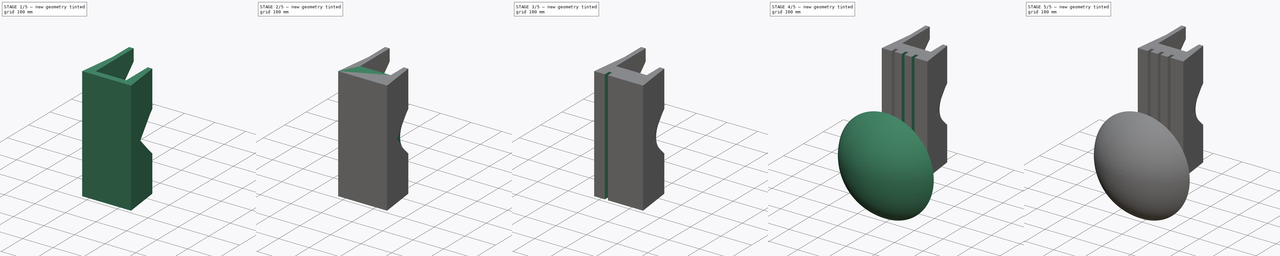
[diagram: build sequence overview — one tinted view per stage of 5, left to right]
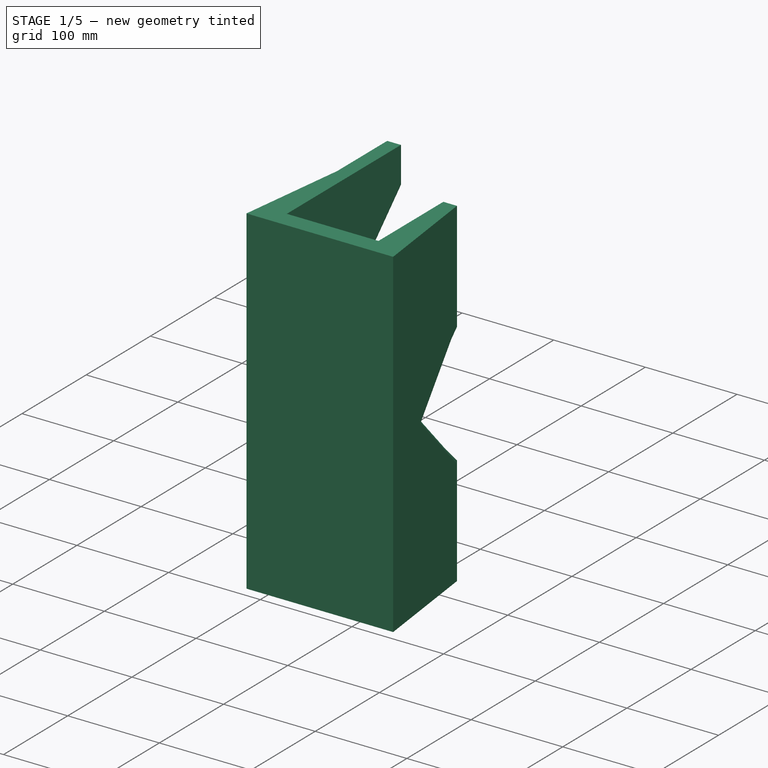
[diagram: stage 1 of 5 — iso view after this stage's code; geometry added in this stage tinted green]
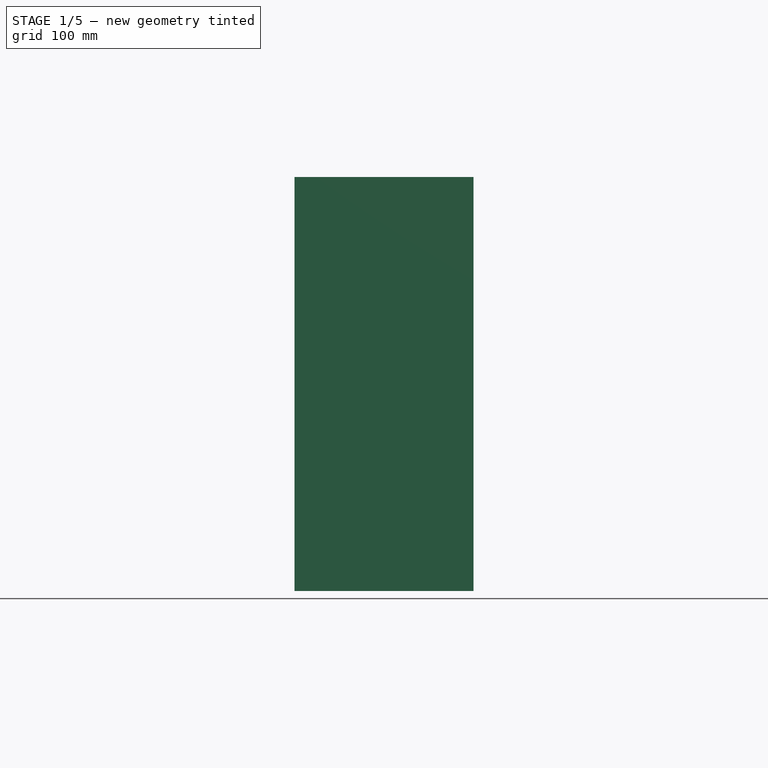
[diagram: stage 1 of 5 — front view after this stage's code; geometry added in this stage tinted green]
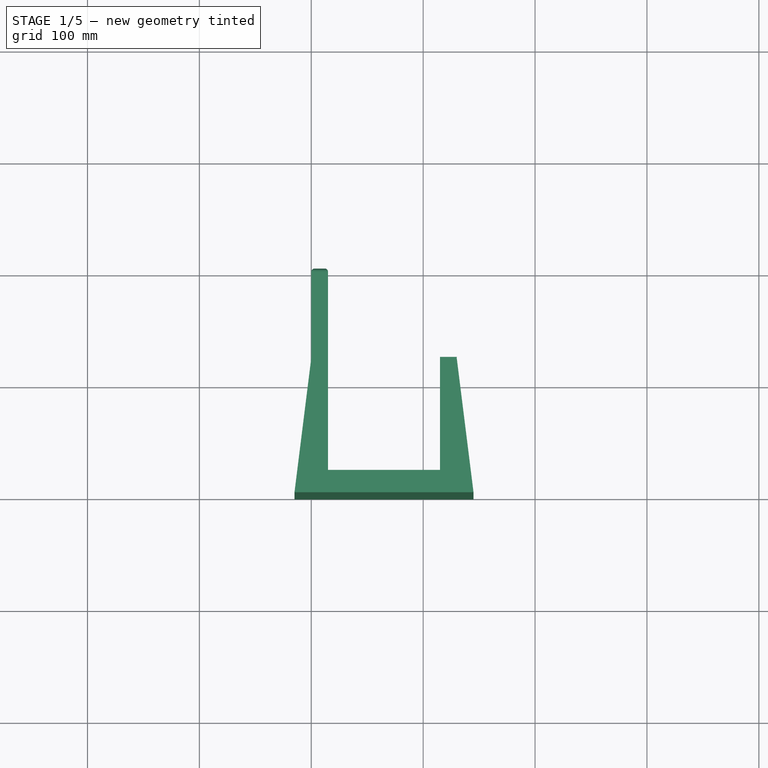
[diagram: stage 1 of 5 — top view after this stage's code; geometry added in this stage tinted green]
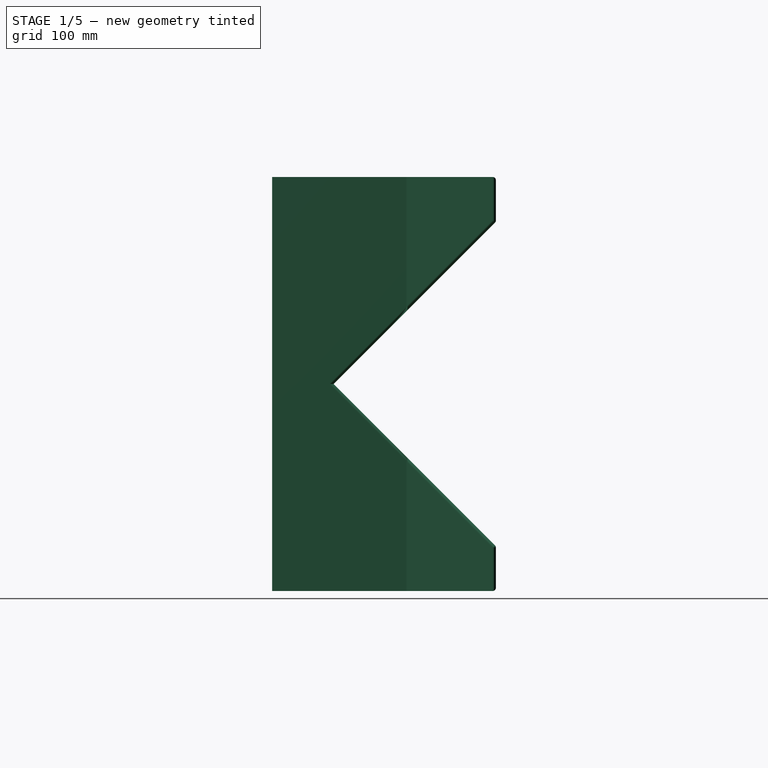
[diagram: stage 1 of 5 — right view after this stage's code; geometry added in this stage tinted green]
FCSTD DOCUMENT  (FreeCAD 1.0R39109 (Git))
Label: choppingBoardHolder
License: All rights reserved
LicenseURL: https://en.wikipedia.org/wiki/All_rights_reserved
objects: PartDesign::Fillet×5, Sketcher::SketchObject×4, PartDesign::SubtractiveBox×3, PartDesign::Body×3, PartDesign::Pad×2, PartDesign::AdditiveBox×2, PartDesign::Revolution×1, PartDesign::Chamfer×1, PartDesign::Pocket×1, PartDesign::LinearPattern×1
note: 58 computed .brp shape members not serialized (recipe doc carries the construction recipe); baked Part::Feature solids carry a one-line shape summary decoded from their .brp

FEATURE [PartDesign::Body] Body
  AllowCompound = false
  Group = -> [Sketch,Pad,Box,Fillet,Fillet001]
  Origin = -> Origin
  Tip = -> Fillet001
FEATURE [Sketcher::SketchObject] Sketch001
  ArcFitTolerance = 1e-06
  AttachmentSupport = -> [XY_Plane001]
  FullyConstrained = true
  MakeInternals = false
  MapMode = 5
  sketch-geometry (16):
    g0: LineSegment StartX=0 StartY=0 StartZ=0 EndX=50 EndY=0 EndZ=0
    g1: LineSegment StartX=15 StartY=20 StartZ=0 EndX=15 EndY=200 EndZ=0
    g2: LineSegment StartX=15 StartY=200 StartZ=0 EndX=0 EndY=200 EndZ=0
    g3: LineSegment StartX=0 StartY=200 StartZ=0 EndX=0 EndY=120 EndZ=0
    g4: LineSegment StartX=50 StartY=0 StartZ=0 EndX=80 EndY=0 EndZ=0
    g5: LineSegment StartX=115 StartY=20 StartZ=0 EndX=15 EndY=20 EndZ=0
    g6: LineSegment StartX=80 StartY=0 StartZ=0 EndX=130 EndY=0 EndZ=0
    g7: LineSegment StartX=130 StartY=120 StartZ=0 EndX=130 EndY=121 EndZ=0
    g8: LineSegment StartX=130 StartY=121 StartZ=0 EndX=115 EndY=121 EndZ=0
    g9: GeomPoint [constr] X=0 Y=0 Z=0
    g10: LineSegment StartX=-15 StartY=0 StartZ=0 EndX=0 EndY=120 EndZ=0
    g11: GeomPoint [constr] X=130 Y=0 Z=0
    g12: LineSegment StartX=130 StartY=120 StartZ=0 EndX=145 EndY=0 EndZ=0
    g13: LineSegment StartX=0 StartY=0 StartZ=0 EndX=-15 EndY=0 EndZ=0
    g14: LineSegment StartX=130 StartY=0 StartZ=0 EndX=145 EndY=0 EndZ=0
    g15: LineSegment StartX=115 StartY=20 StartZ=0 EndX=115 EndY=121 EndZ=0
  constraints (43):
    c: Coincident(g1,g2)
    c: Coincident(g2,g3)
    c: Coincident(g9,g0)
    c: Horizontal(g0)
    c: Horizontal(g2)
    c: Vertical(g1)
    c: Vertical(g3)
    c: Coincident(g0,g-1)
    c: Horizontal(g4)
    c: Horizontal(g5)
    c: Coincident(g4,g0)
    c: Coincident(g6,g11)
    c: Coincident(g7,g8)
    c: Horizontal(g6)
    c: Vertical(g7)
    c: Coincident(g6,g4)
    c: Equal(g0,g6)
    c: DistanceX(g5,g5) = 100
    c: DistanceY(g4,g5) = 20
    c: PointOnObject(g9,g3)
    c: Coincident(g10,g3)
    c: PointOnObject(g11,g7)
    c: Coincident(g12,g7)
    c: Coincident(g13,g0)
    c: Coincident(g14,g6)
    c: Horizontal(g14)
    c: Equal(g10,g12)
    c: Coincident(g10,g13)
    c: PointOnObject(g10,g-1)
    c: Coincident(g12,g14)
    c: Equal(g14,g13)
    c: Coincident(g15,g5)
    c: Coincident(g15,g8)
    c: Vertical(g15)
    c: Coincident(g5,g1)
    c: Equal(g8,g2)
    c: DistanceX(g10,g12) = 160
    c: DistanceY(g7,g7) = 1
    c: DistanceX(g4,g4) = 30
    c: Distance(g8,g8) = 15
    c: Horizontal(g8)
    c: DistanceY(g6,g7) = 120
    c: DistanceY(g1,g1) = 180
FEATURE [PartDesign::Pad] Pad001
  Direction = (0,0,1)
  Length = 370
  Length2 = 10
  Profile = -> Sketch001
  ReferenceAxis = -> Sketch001 [N_Axis]
  Refine = true
  Suppressed = false
  Type = 0
FEATURE [PartDesign::SubtractiveBox] Box001
  AttacherType = Attacher::AttachEngine3D
  AttachmentOffset = pos=(-21,55,185) rot=(-1,0,0;0.785398rad)
  AttachmentSupport = -> [X_Axis001]
  BaseFeature = -> Pad001
  Height = 263
  Length = 167
  MapMode = 2
  Placement = pos=(-21,55,185) rot=(-1,0,0;0.785398rad)
  Refine = true
  Suppressed = false
  Width = 263
  expr: .AttachmentOffset.Base.z = Pad001.Length / 2
  expr: Height = Width
FEATURE [PartDesign::Body] Body002
  AllowCompound = false
  Group = -> [Sketch002,Revolution]
  Origin = -> Origin002
  Placement = pos=(19.8,176.74,185) rot=(0,0,1;1.8326rad)
  Tip = -> Revolution
  expr: .Placement.Base.z = Pad001.Length / 2
FEATURE [PartDesign::Fillet] Fillet002
  Base = -> Box001 [Edge49,Edge48,Edge41,Edge42,Edge6,Edge32,Edge5,Edge31,Edge53,Edge47,Edge44,Edge40,Edge14,Edge45,Edge24,Edge43,Edge51,Edge52]
  BaseFeature = -> Box001
  Placement = pos=(-21,55,185) rot=(-1,0,0;0.785398rad)
  Radius = 3
  Refine = true
  SupportTransform = false
  Suppressed = false
  UseAllEdges = false
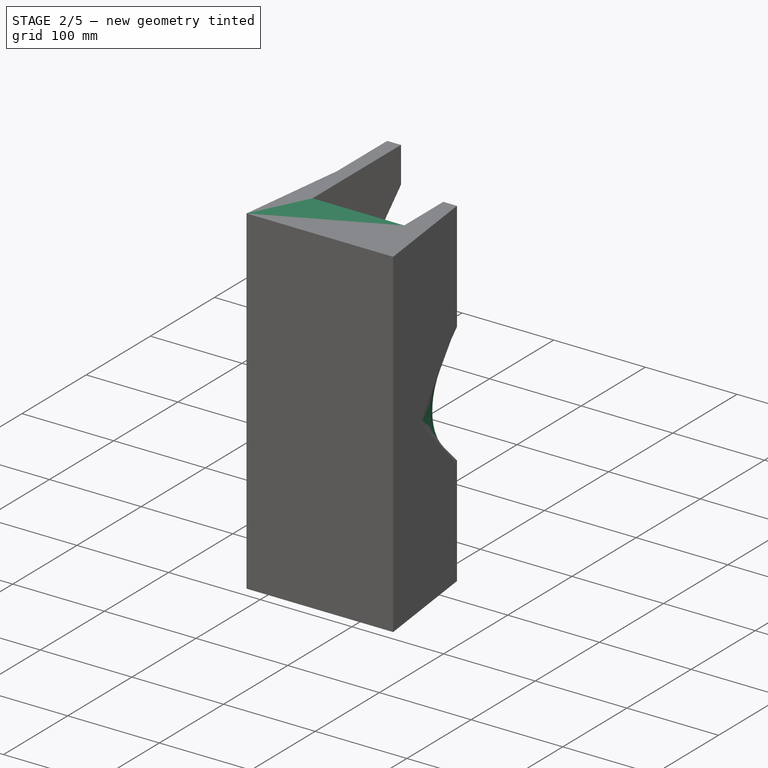
[diagram: stage 2 of 5 — iso view after this stage's code; geometry added in this stage tinted green]
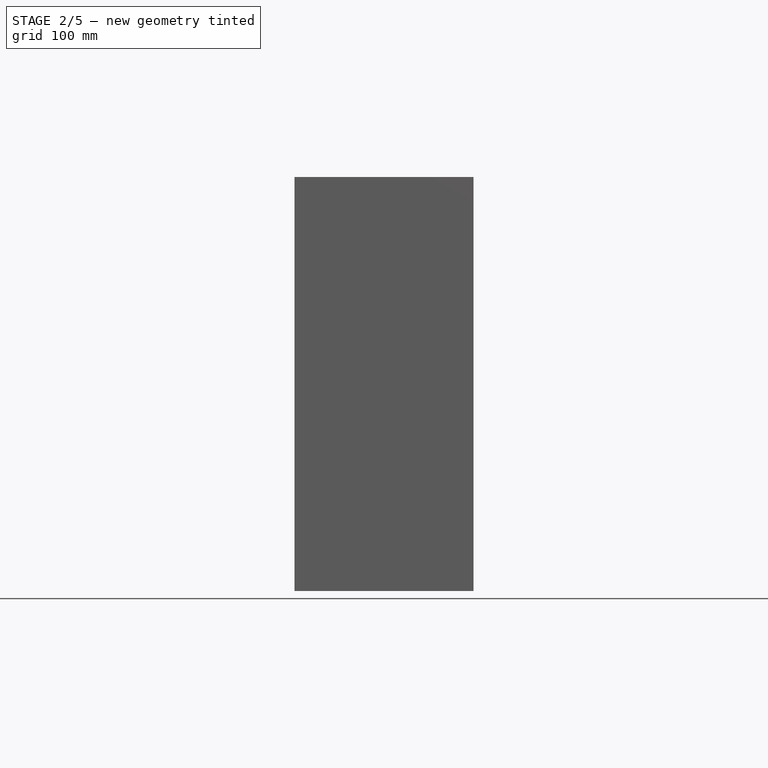
[diagram: stage 2 of 5 — front view after this stage's code; geometry added in this stage tinted green]
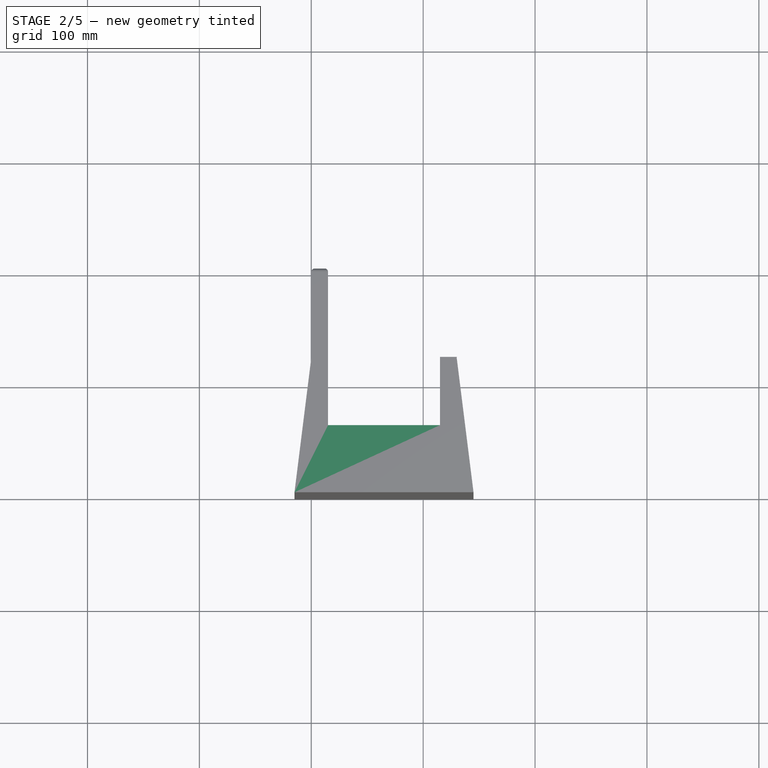
[diagram: stage 2 of 5 — top view after this stage's code; geometry added in this stage tinted green]
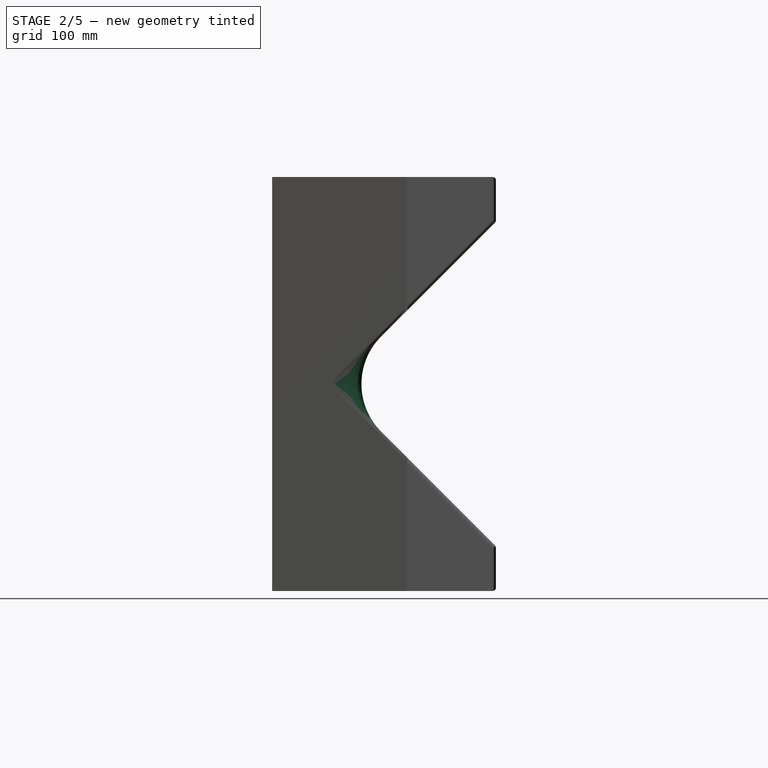
[diagram: stage 2 of 5 — right view after this stage's code; geometry added in this stage tinted green]
FEATURE [PartDesign::Fillet] Fillet003
  Base = -> Fillet002 [Edge98,Edge38]
  BaseFeature = -> Fillet002
  Placement = pos=(-21,55,185) rot=(-1,0,0;0.785398rad)
  Radius = 60
  Refine = true
  SupportTransform = false
  Suppressed = false
  UseAllEdges = false
FEATURE [PartDesign::AdditiveBox] Box002
  AttacherType = Attacher::AttachEngine3D
  AttachmentOffset = pos=(0,0,0) rot=(0,0,1;1.5708rad)
  AttachmentSupport = -> [Fillet003]
  BaseFeature = -> Fillet003
  Height = 100
  Length = 110
  MapMode = 7
  Placement = pos=(115,20,0) rot=(0,-1,0;1.5708rad)
  Refine = true
  Suppressed = false
  Width = 40
FEATURE [PartDesign::AdditiveBox] Box003
  AttacherType = Attacher::AttachEngine3D
  AttachmentOffset = pos=(0,0,0) rot=(0,0,1;3.14159rad)
  AttachmentSupport = -> [Box002]
  BaseFeature = -> Box002
  Height = 100
  Length = 40
  MapMode = 7
  Placement = pos=(115,20,370) rot=(-0.57735,-0.57735,0.57735;2.0944rad)
  Refine = true
  Suppressed = false
  Width = 110
  expr: Height = Box002.Height
  expr: Length = Box002.Width
  expr: Width = Box002.Length
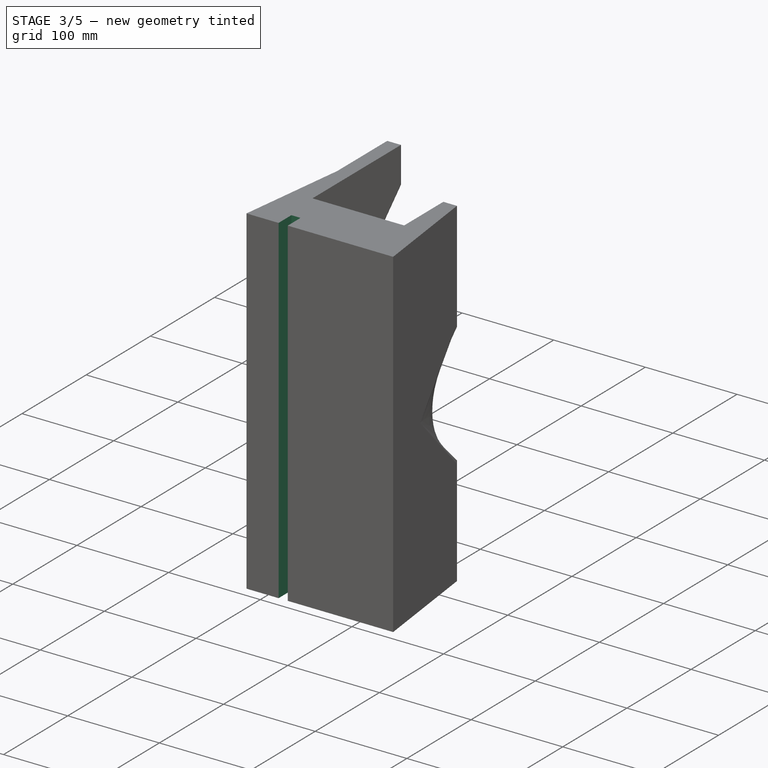
[diagram: stage 3 of 5 — iso view after this stage's code; geometry added in this stage tinted green]
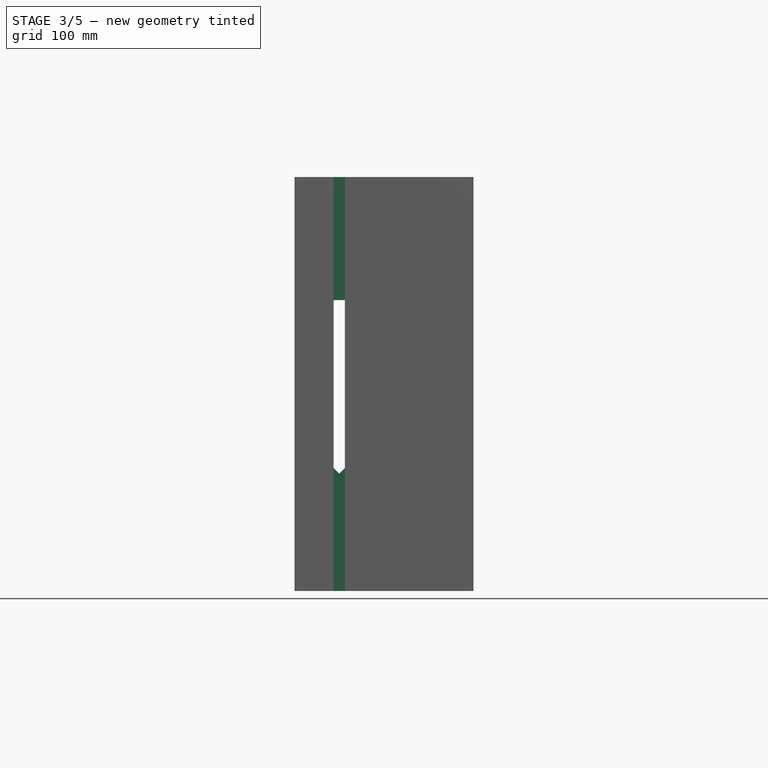
[diagram: stage 3 of 5 — front view after this stage's code; geometry added in this stage tinted green]
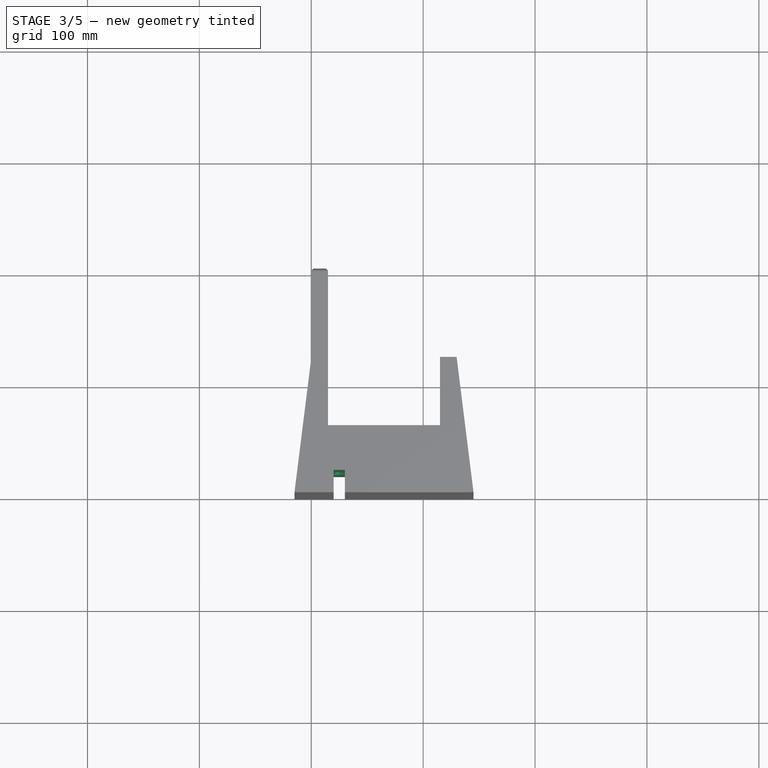
[diagram: stage 3 of 5 — top view after this stage's code; geometry added in this stage tinted green]
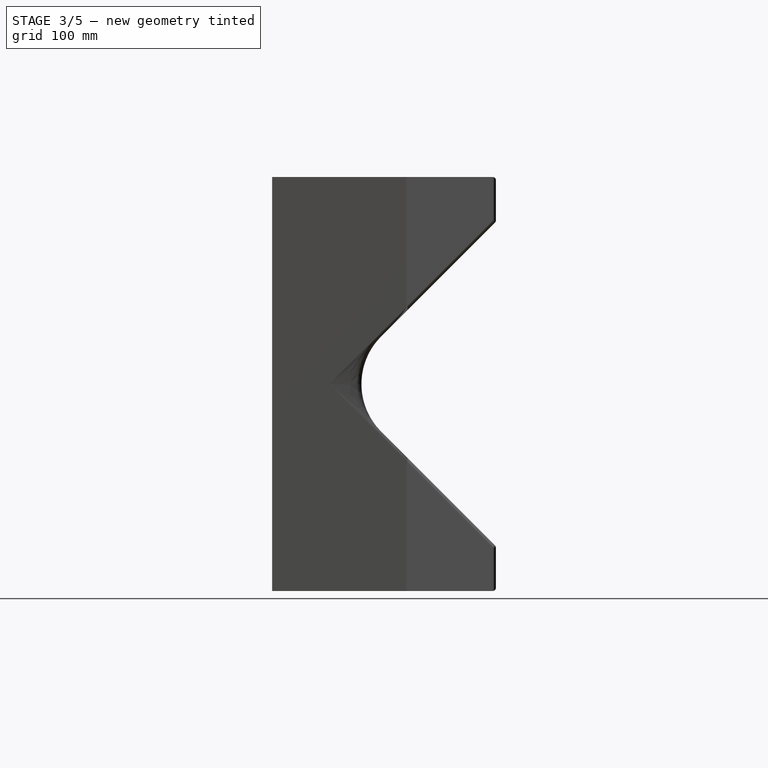
[diagram: stage 3 of 5 — right view after this stage's code; geometry added in this stage tinted green]
FEATURE [PartDesign::Chamfer] Chamfer
  Angle = 45
  Base = -> Box003 [Edge78,Edge34]
  BaseFeature = -> Box003
  ChamferType = 0
  FlipDirection = false
  Placement = pos=(115,20,370) rot=(-0.57735,-0.57735,0.57735;2.0944rad)
  Refine = true
  Size = 39.99
  Size2 = 1
  SupportTransform = false
  Suppressed = false
  UseAllEdges = false
FEATURE [PartDesign::Fillet] Fillet004
  Base = -> Chamfer [Edge43,Edge14]
  BaseFeature = -> Chamfer
  Placement = pos=(115,20,370) rot=(-0.57735,-0.57735,0.57735;2.0944rad)
  Radius = 24
  Refine = true
  SupportTransform = false
  Suppressed = false
  UseAllEdges = false
FEATURE [PartDesign::SubtractiveBox] Box004
  AttacherType = Attacher::AttachEngine3D
  AttachmentOffset = pos=(20,0,0) rot=(0,0,1;0rad)
  AttachmentSupport = -> [X_Axis001]
  BaseFeature = -> Fillet004
  Height = 390
  Length = 10
  MapMode = 2
  Placement = pos=(20,0,0) rot=(0,0,1;0rad)
  Refine = true
  Suppressed = false
  Width = 20
FEATURE [Sketcher::SketchObject] Sketch003
  ArcFitTolerance = 1e-06
  AttachmentSupport = -> [Box004]
  ExternalGeometry = -> [Box004]
  FullyConstrained = true
  MakeInternals = false
  MapMode = 5
  Placement = pos=(20,20,0) rot=(1,0,0;1.5708rad)
  sketch-geometry (3):
    g0: LineSegment StartX=2.84e-14 StartY=110 StartZ=0 EndX=5 EndY=105 EndZ=0
    g1: LineSegment StartX=5 StartY=105 StartZ=0 EndX=10 EndY=110 EndZ=0
    g2: LineSegment StartX=2.84e-14 StartY=110 StartZ=0 EndX=10 EndY=110 EndZ=0
  constraints (7):
    c: Angle(g-1,g0) = -0.785398
    c: Coincident(g0,g-3)
    c: Angle(g-1,g1) = 0.785398
    c: Coincident(g1,g0)
    c: Coincident(g1,g-3)
    c: Coincident(g2,g0)
    c: Coincident(g2,g1)
FEATURE [PartDesign::Pocket] Pocket
  BaseFeature = -> Box004
  Direction = (0,1,-2e-16)
  Length = 5
  Length2 = 5
  Placement = pos=(20,0,0) rot=(0,0,1;0rad)
  Profile = -> Sketch003
  ReferenceAxis = -> Sketch003 [N_Axis]
  Refine = true
  Suppressed = false
  Type = 1
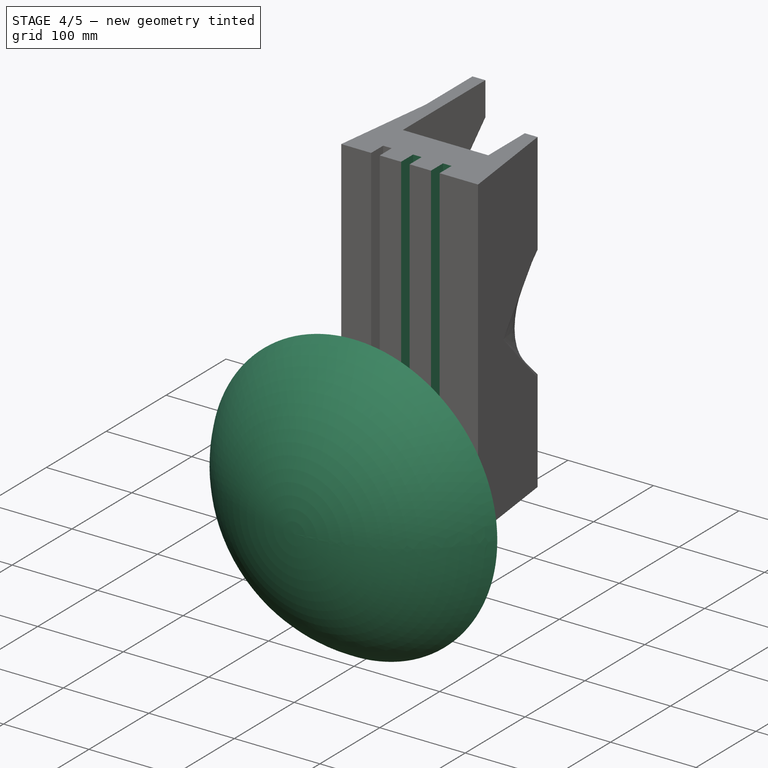
[diagram: stage 4 of 5 — iso view after this stage's code; geometry added in this stage tinted green]
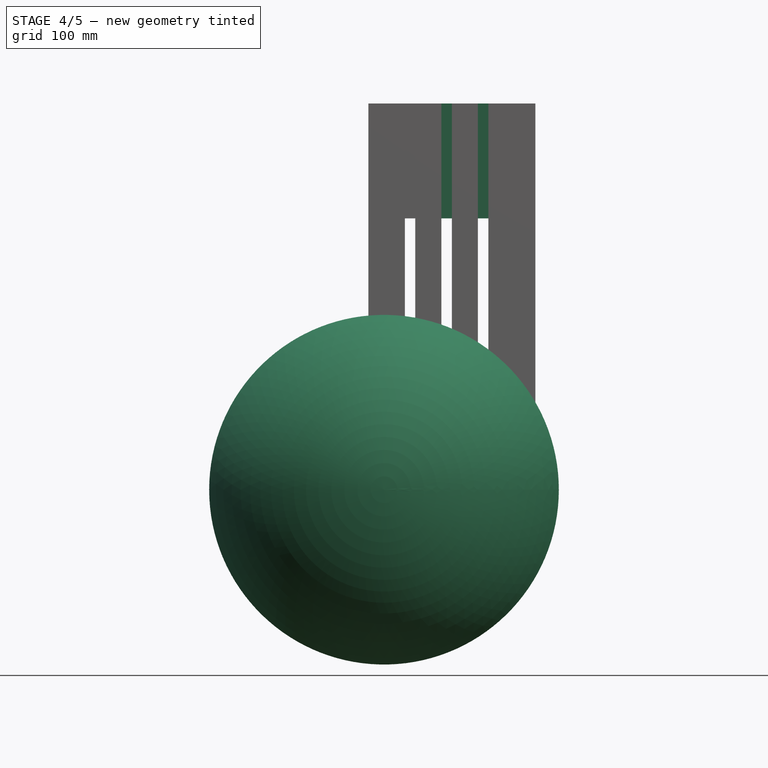
[diagram: stage 4 of 5 — front view after this stage's code; geometry added in this stage tinted green]
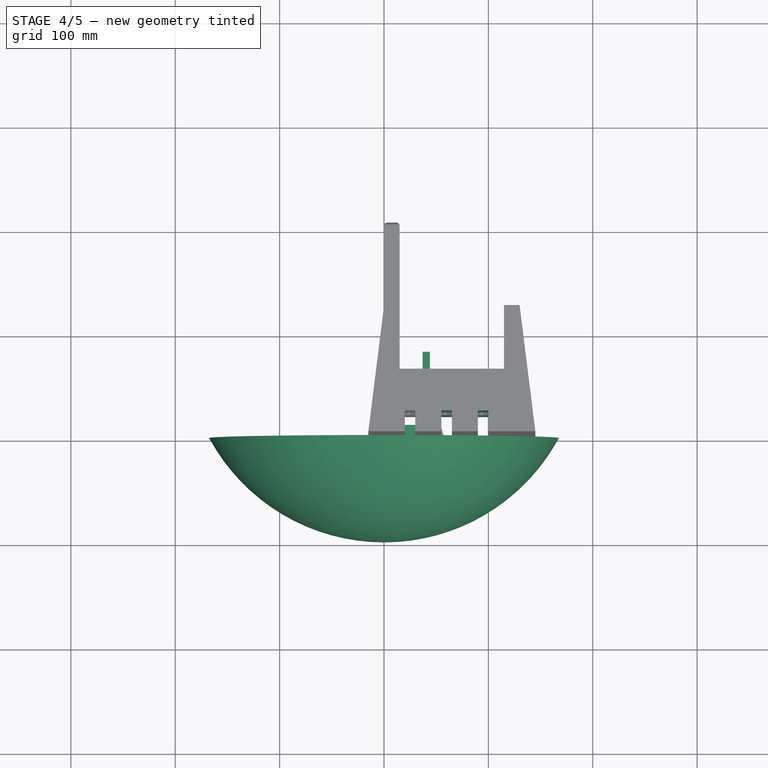
[diagram: stage 4 of 5 — top view after this stage's code; geometry added in this stage tinted green]
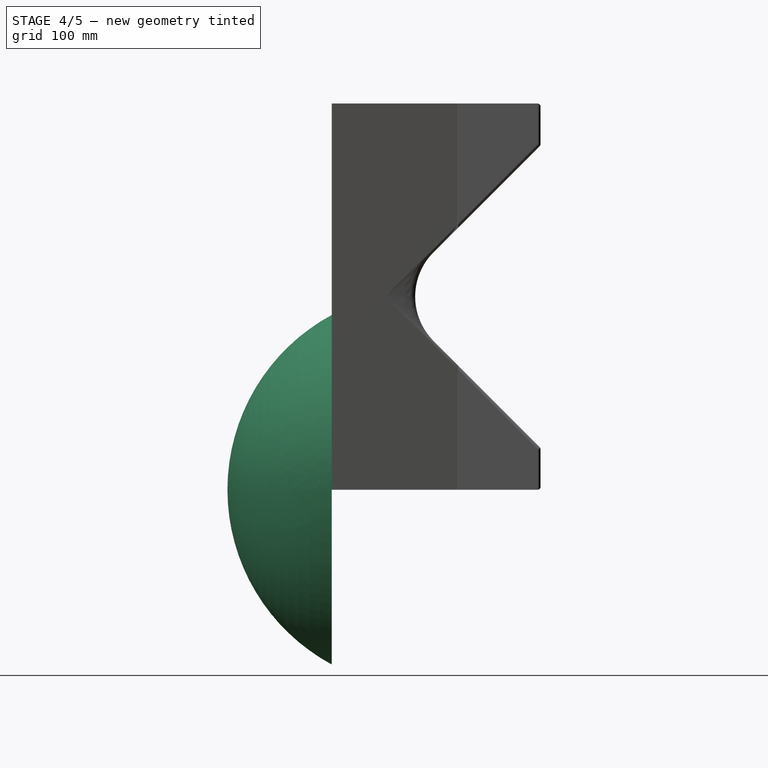
[diagram: stage 4 of 5 — right view after this stage's code; geometry added in this stage tinted green]
FEATURE [Sketcher::SketchObject] Sketch
  ArcFitTolerance = 1e-06
  AttachmentSupport = -> [XY_Plane]
  FullyConstrained = true
  MakeInternals = false
  MapMode = 5
  sketch-geometry (16):
    g0: LineSegment StartX=0 StartY=0 StartZ=0 EndX=7 EndY=0 EndZ=0
    g1: LineSegment StartX=7 StartY=10 StartZ=0 EndX=7 EndY=80 EndZ=0
    g2: LineSegment StartX=7 StartY=80 StartZ=0 EndX=0 EndY=80 EndZ=0
    g3: LineSegment StartX=0 StartY=80 StartZ=0 EndX=0 EndY=50 EndZ=0
    g4: LineSegment StartX=7 StartY=0 StartZ=0 EndX=37 EndY=0 EndZ=0
    g5: LineSegment StartX=37 StartY=10 StartZ=0 EndX=7 EndY=10 EndZ=0
    g6: LineSegment StartX=37 StartY=0 StartZ=0 EndX=44 EndY=0 EndZ=0
    g7: LineSegment StartX=44 StartY=50 StartZ=0 EndX=44 EndY=80 EndZ=0
    g8: LineSegment StartX=44 StartY=80 StartZ=0 EndX=37 EndY=80 EndZ=0
    g9: GeomPoint [constr] X=0 Y=0 Z=0
    g10: LineSegment StartX=-13 StartY=0 StartZ=0 EndX=0 EndY=50 EndZ=0
    g11: GeomPoint [constr] X=44 Y=0 Z=0
    g12: LineSegment StartX=44 StartY=50 StartZ=0 EndX=57 EndY=0 EndZ=0
    g13: LineSegment StartX=0 StartY=0 StartZ=0 EndX=-13 EndY=0 EndZ=0
    g14: LineSegment StartX=44 StartY=0 StartZ=0 EndX=57 EndY=0 EndZ=0
    g15: LineSegment StartX=37 StartY=10 StartZ=0 EndX=37 EndY=80 EndZ=0
  constraints (42):
    c: Coincident(g1,g2)
    c: Coincident(g2,g3)
    c: Coincident(g9,g0)
    c: Horizontal(g0)
    c: Horizontal(g2)
    c: Vertical(g1)
    c: Vertical(g3)
    c: Coincident(g0,g-1)
    c: Horizontal(g4)
    c: Horizontal(g5)
    c: Coincident(g4,g0)
    c: Coincident(g6,g11)
    c: Coincident(g7,g8)
    c: Horizontal(g6)
    c: Vertical(g7)
    c: Coincident(g6,g4)
    c: Tangent(g8,g2)
    c: Equal(g0,g6)
    c: DistanceX(g5,g5) = 30
    c: DistanceY(g6,g8) = 80
    c: Distance(g2,g2) = 7
    c: DistanceY(g4,g5) = 10
    c: PointOnObject(g9,g3)
    c: Coincident(g10,g3)
    c: PointOnObject(g11,g7)
    c: Coincident(g12,g7)
    c: Coincident(g13,g0)
    c: Coincident(g14,g6)
    c: Horizontal(g14)
    c: Equal(g10,g12)
    c: Coincident(g10,g13)
    c: PointOnObject(g10,g-1)
    c: Coincident(g12,g14)
    c: Equal(g14,g13)
    c: Coincident(g15,g5)
    c: Coincident(g15,g8)
    c: Vertical(g15)
    c: Coincident(g5,g1)
    c: Equal(g8,g2)
    c: DistanceX(g10,g12) = 70
    c: DistanceY(g7,g7) = 30
    c: DistanceX(g4,g4) = 30
FEATURE [PartDesign::Pad] Pad
  Direction = (0,0,1)
  Length = 150
  Length2 = 10
  Profile = -> Sketch
  ReferenceAxis = -> Sketch [N_Axis]
  Refine = true
  Suppressed = false
  Type = 0
FEATURE [Sketcher::SketchObject] Sketch002
  ArcFitTolerance = 1e-06
  AttachmentSupport = -> [XY_Plane002]
  FullyConstrained = false
  MakeInternals = false
  MapMode = 5
  sketch-geometry (6):
    g0: LineSegment [constr] StartX=-167.5 StartY=-4.26e-14 StartZ=0 EndX=167.5 EndY=-4.26e-14 EndZ=0
    g1: LineSegment StartX=0 StartY=0 StartZ=0 EndX=0 EndY=-100 EndZ=0
    g2: ArcOfCircle [constr] CenterX=6.2e-15 CenterY=90.2812 CenterZ=0 NormalX=0 NormalY=0 NormalZ=1 AngleXU=0 Radius=190.281 StartAngle=3.63595 EndAngle=4.71239
    g3: ArcOfCircle CenterX=6.2e-15 CenterY=90.2812 CenterZ=0 NormalX=0 NormalY=0 NormalZ=1 AngleXU=0 Radius=190.281 StartAngle=4.71239 EndAngle=4.71239
    g4: ArcOfCircle CenterX=6.2e-15 CenterY=90.2812 CenterZ=0 NormalX=0 NormalY=0 NormalZ=1 AngleXU=0 Radius=190.281 StartAngle=4.71239 EndAngle=5.78883
    g5: LineSegment StartX=0 StartY=0 StartZ=0 EndX=167.5 EndY=-4.26e-14 EndZ=0
  constraints (16):
    c: PointOnObject(g4,g-1)
    c: Coincident(g0,g2)
    c: Coincident(g0,g4)
    c: DistanceX(g0,g0) = 335
    c: Symmetric(g0,g0,g1)
    c: Vertical(g1)
    c: DistanceY(g1,g1) = 100
    c: Coincident(g1,g-1)
    c: Coincident(g2,g3)
    c: Coincident(g2,g3)
    c: PointOnObject(g1,g2)
    c: Coincident(g3,g4)
    c: Coincident(g3,g4)
    c: PointOnObject(g3,g-2)
    c: Coincident(g5,g1)
    c: Coincident(g5,g0)
FEATURE [PartDesign::Revolution] Revolution
  Angle = 360
  Angle2 = 60
  Axis = (0,1,0)
  Base = (0,0,0)
  Profile = -> Sketch002 [Edge1,Edge4,Edge3]
  ReferenceAxis = -> Sketch002 [V_Axis]
  Refine = true
  Reversed = true
  Suppressed = false
  Type = 0
FEATURE [PartDesign::LinearPattern] LinearPattern
  BaseFeature = -> Pocket
  Direction = -> X_Axis001
  Length = 70
  Mode = 0
  Occurrences = 3
  Offset = 35
  Originals = -> [Box004,Pocket]
  Placement = pos=(20,0,0) rot=(0,0,1;0rad)
  Refine = true
  Suppressed = false
  TransformMode = 0
FEATURE [PartDesign::Body] Body001  label="panHolder"
  AllowCompound = false
  Group = -> [Sketch001,Pad001,Box001,Fillet002,Fillet003,Box002,Box003,Chamfer,Fillet004,Box004,Sketch003,Pocket,LinearPattern]
  Origin = -> Origin001
  Tip = -> LinearPattern
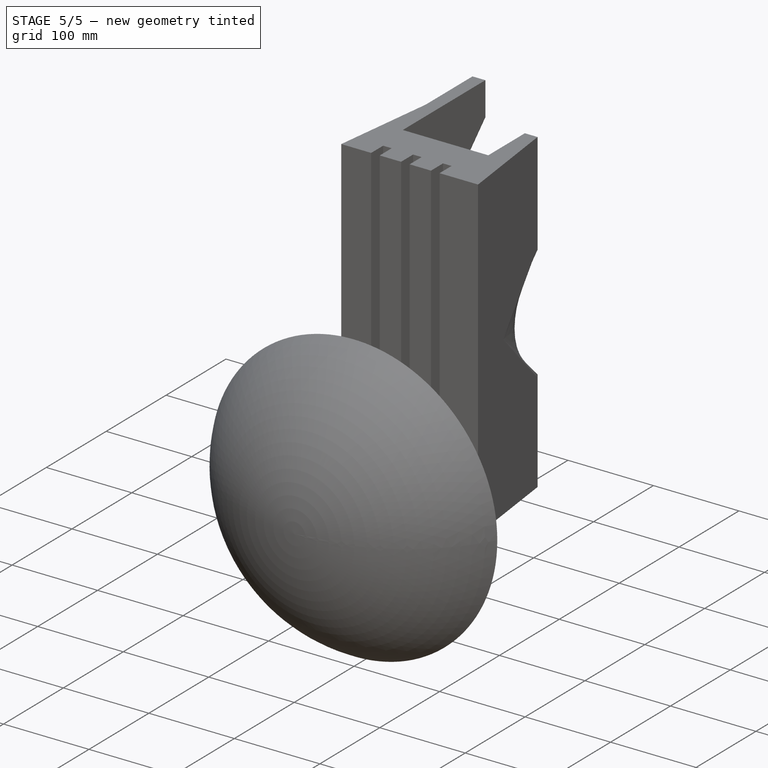
[diagram: stage 5 of 5 — iso view after this stage's code; geometry added in this stage tinted green]
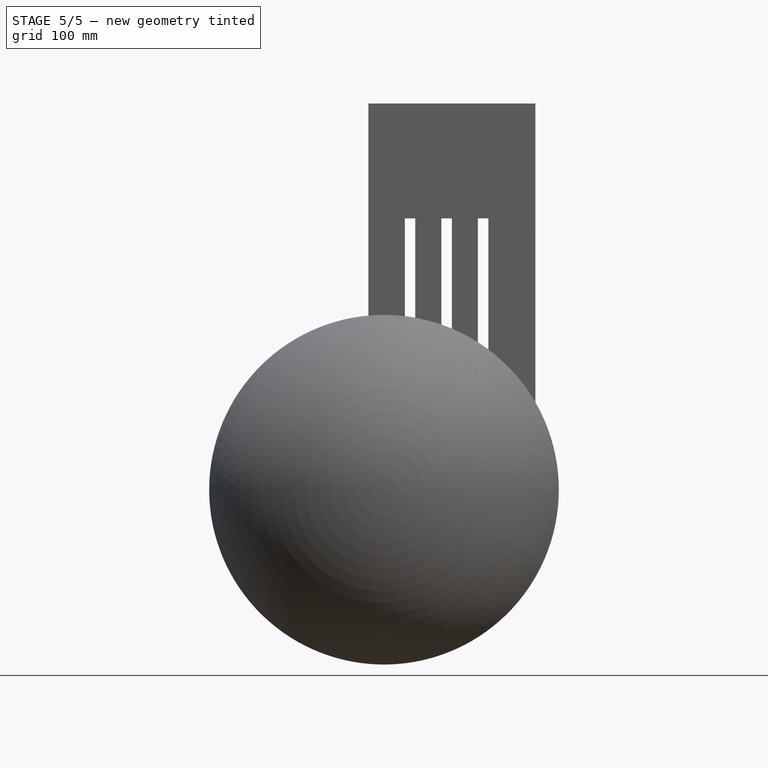
[diagram: stage 5 of 5 — front view after this stage's code; geometry added in this stage tinted green]
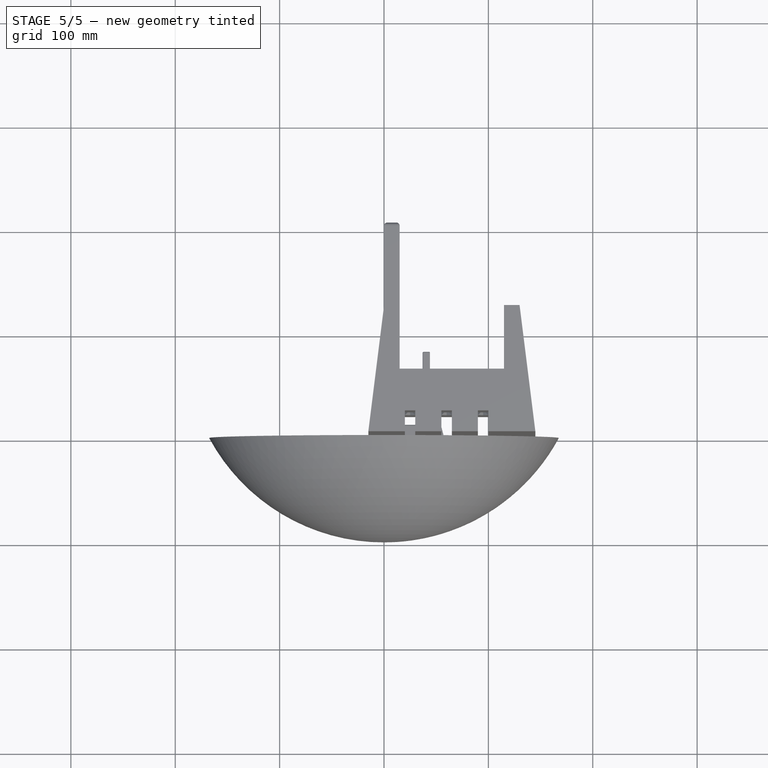
[diagram: stage 5 of 5 — top view after this stage's code; geometry added in this stage tinted green]
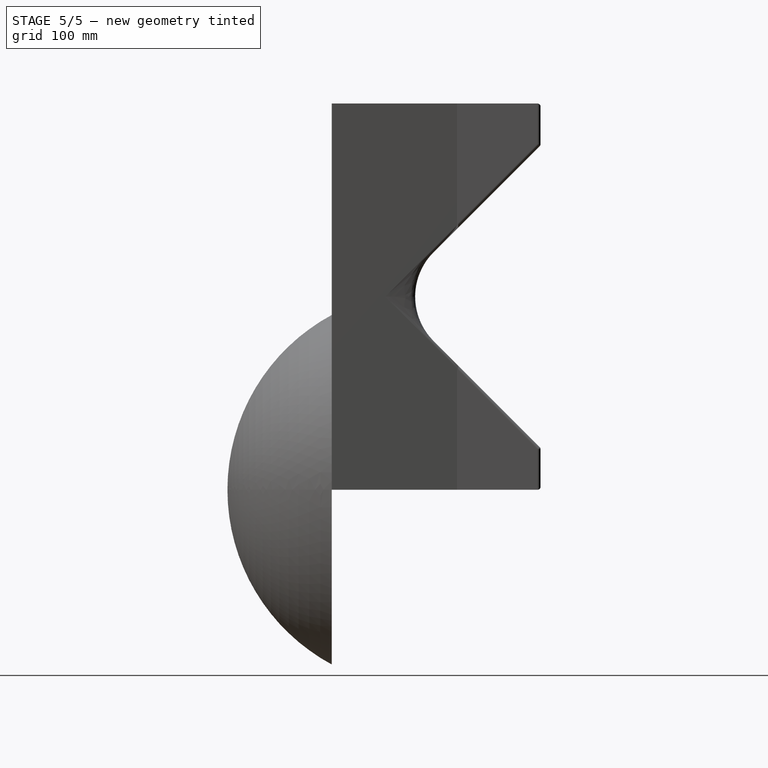
[diagram: stage 5 of 5 — right view after this stage's code; geometry added in this stage tinted green]
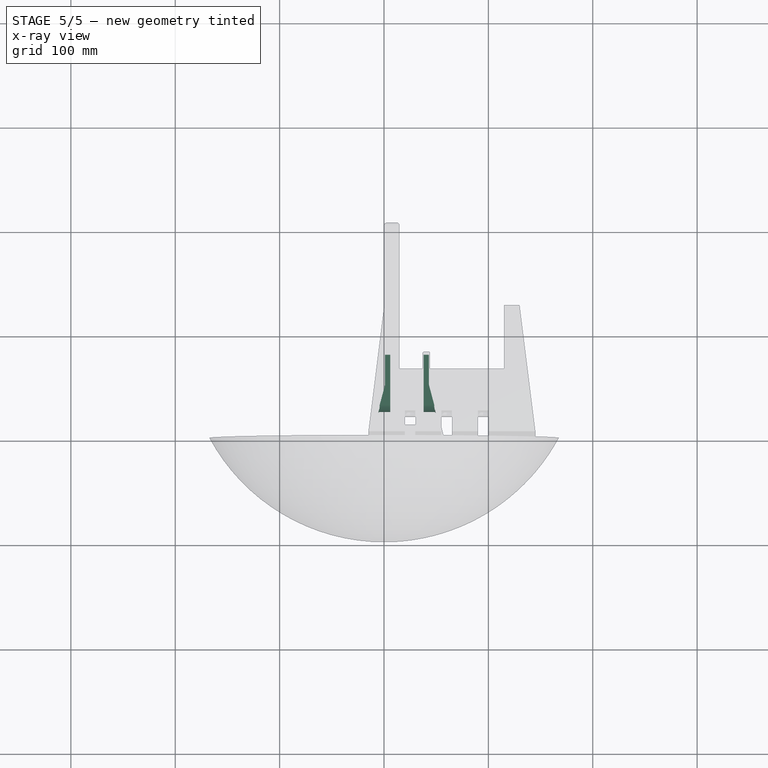
[diagram: stage 5 of 5 — x-ray composite at the top view; earlier geometry ghosted, this stage's added geometry solid]
FEATURE [PartDesign::SubtractiveBox] Box
  AttacherType = Attacher::AttachEngine3D
  AttachmentOffset = pos=(-20,13,75) rot=(-1,0,0;0.785398rad)
  AttachmentSupport = -> [X_Axis]
  BaseFeature = -> Pad
  Height = 138
  Length = 83
  MapMode = 2
  Placement = pos=(-20,13,75) rot=(-1,0,0;0.785398rad)
  Refine = true
  Suppressed = false
  Width = 138
  expr: .AttachmentOffset.Base.z = Pad.Length / 2
  expr: Height = Width
FEATURE [PartDesign::Fillet] Fillet
  Base = -> Box [Edge42,Edge48,Edge47,Edge45,Edge44,Edge14,Edge40,Edge13,Edge41,Edge53,Edge51,Edge43,Edge24,Edge52,Edge23,Edge37,Edge20,Edge28,Edge30,Edge27,Edge5,Edge31,Edge32,Edge6,Edge34,Edge35,Edge33,Edge36,Edge10,Edge9,Edge1,Edge19,Edge3,Edge21,Edge22,Edge25,Edge26,Edge15,Edge12,Edge11,+2 more]
  BaseFeature = -> Box
  Placement = pos=(-20,13,75) rot=(-1,0,0;0.785398rad)
  Radius = 1
  Refine = true
  SupportTransform = false
  Suppressed = false
  UseAllEdges = false
FEATURE [PartDesign::Fillet] Fillet001
  Base = -> Fillet [Edge153,Edge70]
  BaseFeature = -> Fillet
  Placement = pos=(-20,13,75) rot=(-1,0,0;0.785398rad)
  Radius = 25
  Refine = true
  SupportTransform = false
  Suppressed = false
  UseAllEdges = false
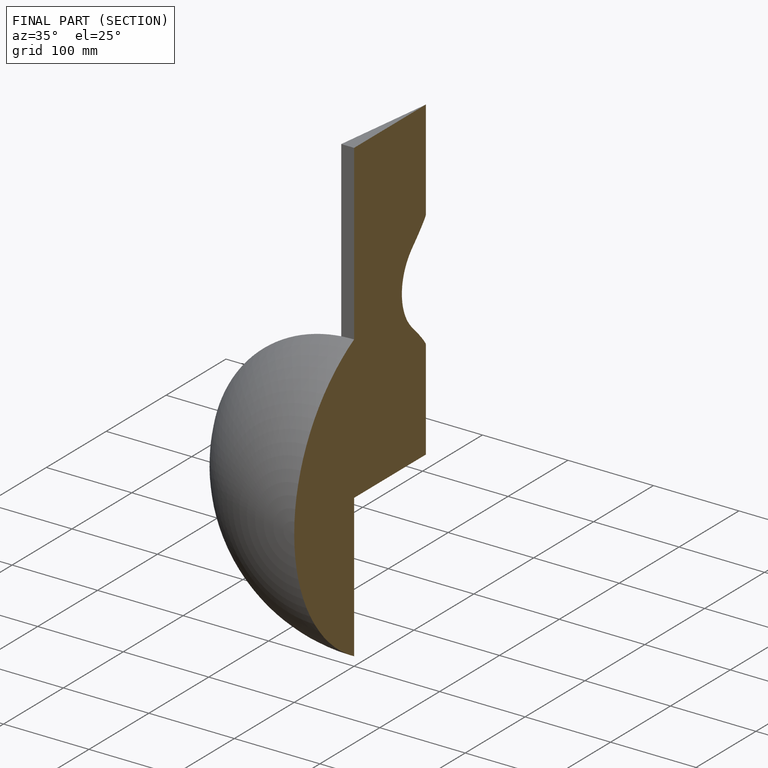
[diagram: finished part — half-section view (interior)]
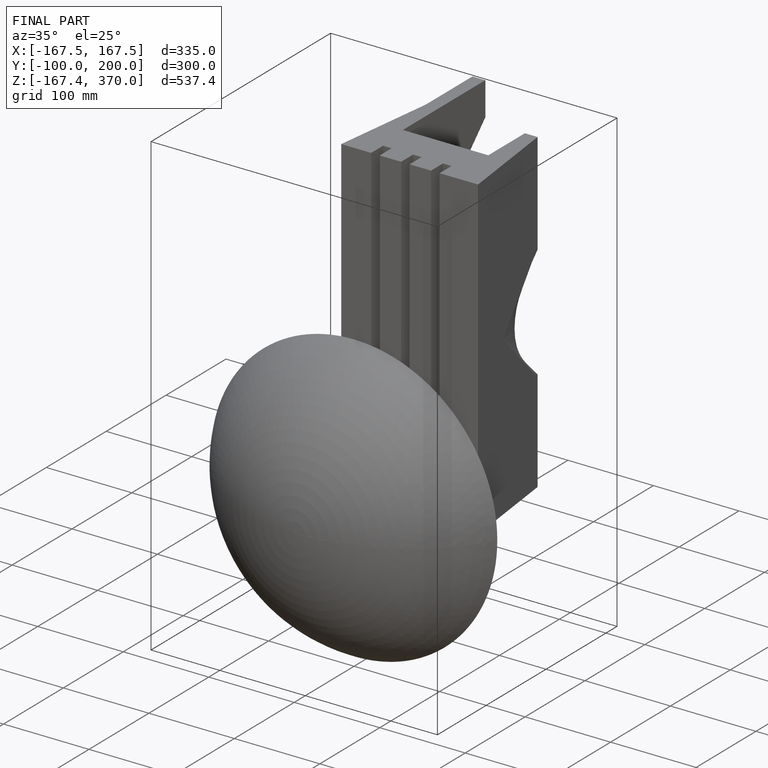
[diagram: finished part — iso view with bounding-box wireframe]
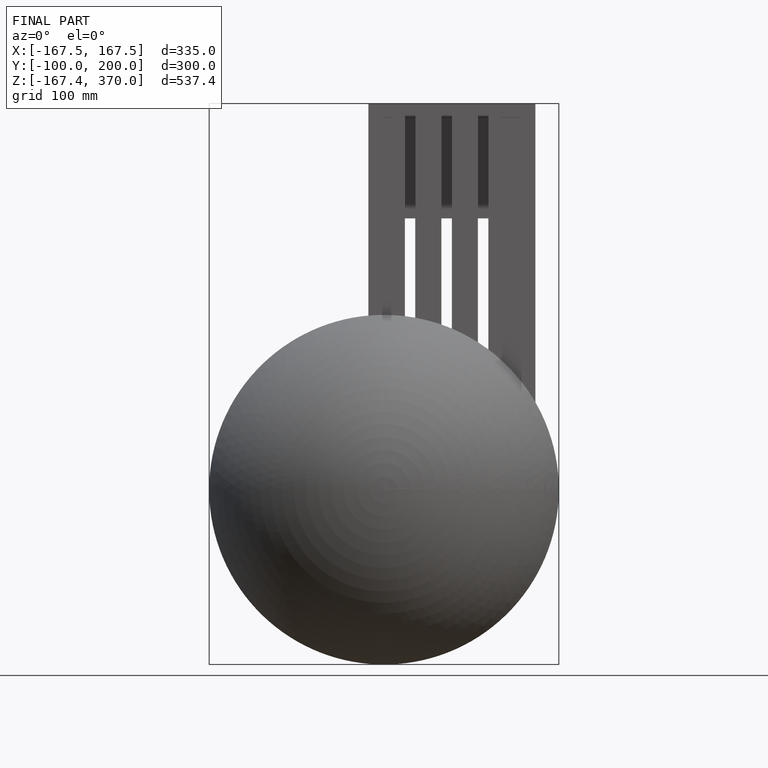
[diagram: finished part — front view with bounding-box wireframe]
